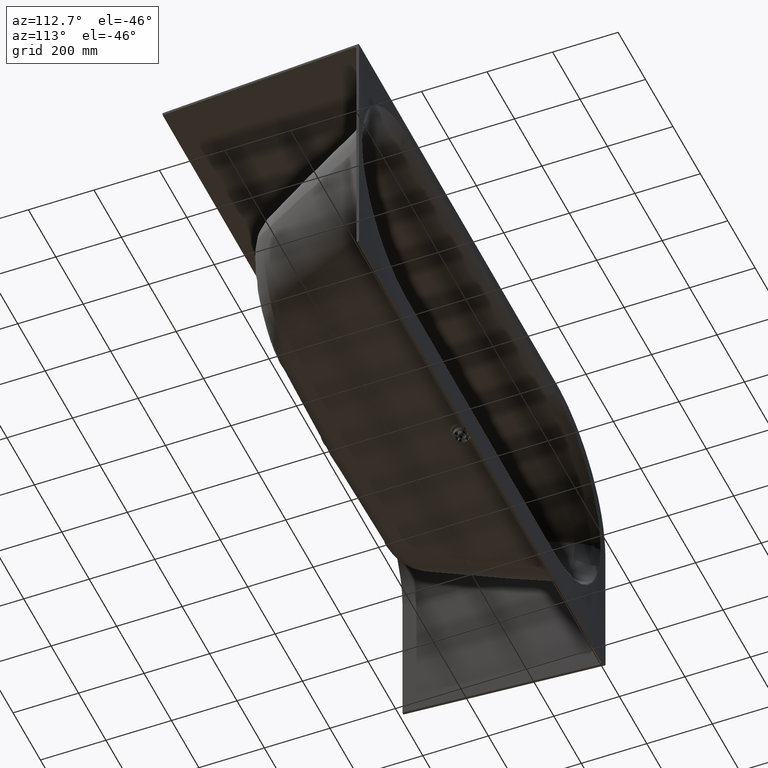
[diagram: clean part render]
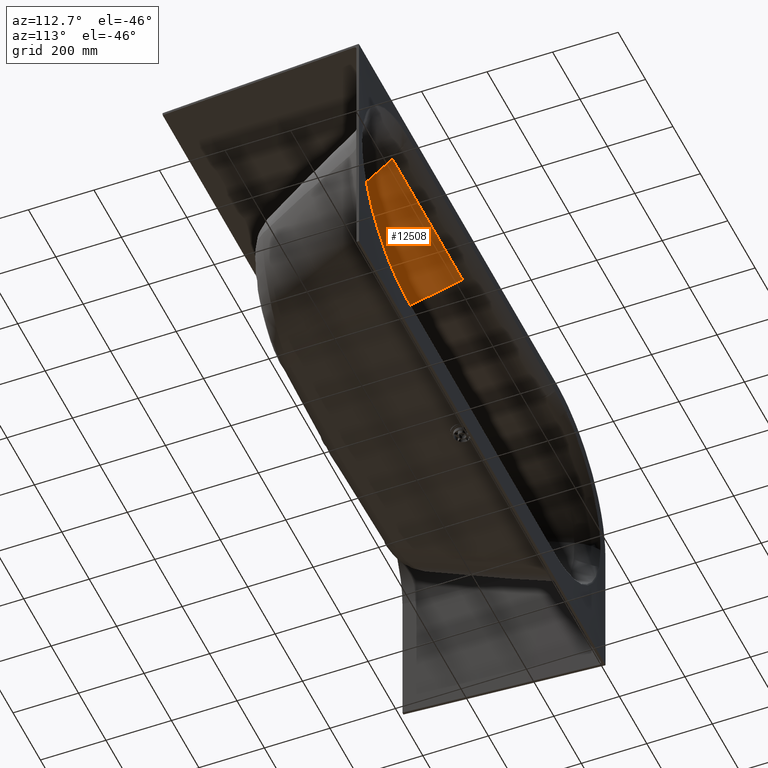
[diagram: same view with one face highlighted and labeled with its STEP entity id]
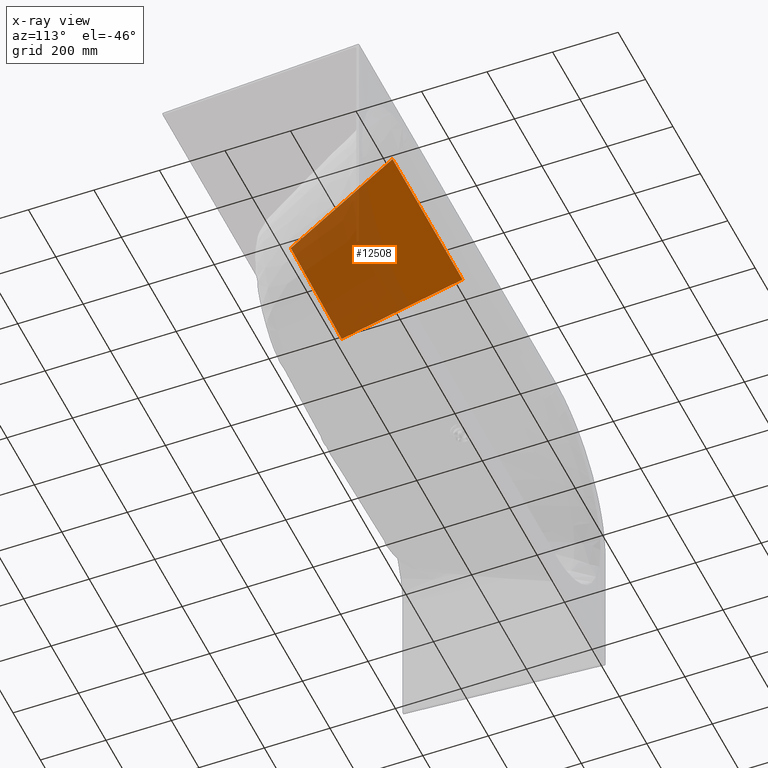
[diagram: x-ray of the same camera — body ghosted, the highlighted face saturated]
A machine part, auxiliary view. The second image highlights one B-rep face of the part: STEP entity #12508.
The next image is the same camera in x-ray: the body ghosted, the highlighted face saturated — about 59% of this face is hidden behind the body in this view.
In plain terms, the highlighted face is a freeform B-spline surface patch.
Its self-contained STEP definition (entity closure, byte-faithful):
#2372=CARTESIAN_POINT('',(5.110218891271E2,-6.054304443643E1,3.277809061408E2));
#2403=CARTESIAN_POINT('',(0.E0,-6.054399916378E1,3.277806644833E2));
#2404=CARTESIAN_POINT('',(1.703404609740E2,-6.054399916378E1,3.277806644833E2));
#2405=CARTESIAN_POINT('',(3.406814281532E2,-6.054305858824E1,3.277809620081E2));
#2406=CARTESIAN_POINT('',(5.110218891271E2,-6.054304443643E1,3.277809061408E2));
#3200=DIRECTION('',(-3.243835470144E-1,-9.170092459292E-1,-2.320977322309E-1));
#3201=VECTOR('',#3200,3.973449760404E2);
#3202=CARTESIAN_POINT('',(5.110218891271E2,-6.054304443643E1,3.277809061408E2));
#3203=LINE('',#3202,#3201);
#3204=CARTESIAN_POINT('',(3.821297164108E2,-4.249120612890E2,2.355580382884E2));
#3205=CARTESIAN_POINT('',(3.797755431722E2,-4.250129725860E2,2.355342622633E2));
#3206=CARTESIAN_POINT('',(3.747932515425E2,-4.251542848250E2,2.355020763330E2));
#3207=CARTESIAN_POINT('',(3.665620737458E2,-4.253501159943E2,2.354578492057E2));
#3208=CARTESIAN_POINT('',(3.574216345834E2,-4.255693710715E2,2.354075948610E2));
#3209=CARTESIAN_POINT('',(3.472509548175E2,-4.258034783601E2,2.353533796426E2));
#3210=CARTESIAN_POINT('',(3.358890797524E2,-4.260560686391E2,2.352941629421E2));
#3211=CARTESIAN_POINT('',(3.231226094317E2,-4.263280096301E2,2.352295730855E2));
#3212=CARTESIAN_POINT('',(3.087557457029E2,-4.266196603906E2,2.351593276086E2));
#3213=CARTESIAN_POINT('',(2.921252974144E2,-4.269384303107E2,2.350813586643E2));
#3214=CARTESIAN_POINT('',(2.739467547824E2,-4.272634036828E2,2.350005068432E2));
#3215=CARTESIAN_POINT('',(2.561446849795E2,-4.275586542646E2,2.349258284139E2));
#3216=CARTESIAN_POINT('',(2.388392233489E2,-4.278248718313E2,2.348574844720E2));
#3217=CARTESIAN_POINT('',(2.218095469704E2,-4.280670069547E2,2.347944422761E2));
#3218=CARTESIAN_POINT('',(2.050931214405E2,-4.282857658627E2,2.347367207454E2));
#3219=CARTESIAN_POINT('',(1.886209974639E2,-4.284832042470E2,2.346839572111E2));
#3220=CARTESIAN_POINT('',(1.723659140701E2,-4.286605386843E2,2.346359797811E2));
#3221=CARTESIAN_POINT('',(1.562900667196E2,-4.288189513241E2,2.345926050984E2));
#3222=CARTESIAN_POINT('',(1.403624194096E2,-4.289593775098E2,2.345536985972E2));
#3223=CARTESIAN_POINT('',(1.245534762805E2,-4.290826122227E2,2.345191509136E2));
#3224=CARTESIAN_POINT('',(1.088374426634E2,-4.291893173896E2,2.344888795385E2));
#3225=CARTESIAN_POINT('',(9.319134669932E1,-4.292800652411E2,2.344628203519E2));
#3226=CARTESIAN_POINT('',(7.759755927810E1,-4.293553554450E2,2.344409257815E2));
#3227=CARTESIAN_POINT('',(6.203805103967E1,-4.294156919129E2,2.344231462647E2));
#3228=CARTESIAN_POINT('',(4.651046679555E1,-4.294615006717E2,2.344094541462E2));
#3229=CARTESIAN_POINT('',(3.098701217859E1,-4.294934976207E2,2.343997473482E2));
#3230=CARTESIAN_POINT('',(1.550861606283E1,-4.295117682763E2,2.343940905631E2));
#3231=CARTESIAN_POINT('',(5.170124141787E0,-4.295162588066E2,2.343927036163E2));
#3232=CARTESIAN_POINT('',(-2.158024530808E-8,-4.295160011122E2,
2.343927688753E2));
#3234=DIRECTION('',(5.669955917872E-11,9.694305862194E-1,2.453657239762E-1));
#3235=VECTOR('',#3234,3.806069327639E2);
#3236=CARTESIAN_POINT('',(-2.158024530808E-8,-4.295160011122E2,
2.343927688753E2));
#3237=LINE('',#3236,#3235);
#3750=VERTEX_POINT('',#2372);
#3786=CARTESIAN_POINT('',(-2.158024530808E-8,-4.295160011122E2,
2.343927688753E2));
#3787=CARTESIAN_POINT('',(0.E0,-6.054399916378E1,3.277806644833E2));
#3788=VERTEX_POINT('',#3786);
#3789=VERTEX_POINT('',#3787);
#3799=VERTEX_POINT('',#3204);
#12472=CARTESIAN_POINT('',(5.174397074406E2,-5.688291511897E1,
3.287221880076E2));
#12473=CARTESIAN_POINT('',(5.051586320806E2,-9.122172292698E1,
3.198826146986E2));
#12474=CARTESIAN_POINT('',(4.809687714841E2,-1.589733875537E2,
3.029259223842E2));
#12475=CARTESIAN_POINT('',(4.448693292253E2,-2.599978445884E2,
2.772890509623E2));
#12476=CARTESIAN_POINT('',(4.091415577030E2,-3.599952050103E2,
2.519683957748E2));
#12477=CARTESIAN_POINT('',(3.853231286905E2,-4.266666845135E2,
2.351140146626E2));
#12478=CARTESIAN_POINT('',(3.734138874353E2,-4.600000000006E2,
2.266771793714E2));
#12479=CARTESIAN_POINT('',(3.432522060100E2,-5.676005594796E1,
3.282367837167E2));
#12480=CARTESIAN_POINT('',(3.351052888920E2,-9.232227710692E1,
3.242316225409E2));
#12481=CARTESIAN_POINT('',(3.190585633965E2,-1.584948175450E2,
3.010346307167E2));
#12482=CARTESIAN_POINT('',(2.951109904390E2,-2.600741069331E2,
2.775909186273E2));
#12483=CARTESIAN_POINT('',(2.714120333332E2,-3.601630137493E2,
2.526296386345E2));
#12484=CARTESIAN_POINT('',(2.556103889898E2,-4.266660624764E2,
2.351115570189E2));
#12485=CARTESIAN_POINT('',(2.477101993483E2,-4.599999999897E2,
2.266771793258E2));
#12486=CARTESIAN_POINT('',(1.690643262736E2,-5.688280391242E1,
3.287172254574E2));
#12487=CARTESIAN_POINT('',(1.650517598259E2,-9.123244438887E1,
3.199246150636E2));
#12488=CARTESIAN_POINT('',(1.571482303697E2,-1.589687231615E2,
3.029076539405E2));
#12489=CARTESIAN_POINT('',(1.453533356301E2,-2.599985950542E2,
2.772919776572E2));
#12490=CARTESIAN_POINT('',(1.336798896653E2,-3.599968117944E2,
2.519747392390E2));
#12491=CARTESIAN_POINT('',(1.258976492892E2,-4.266666785386E2,
2.351139910568E2));
#12492=CARTESIAN_POINT('',(1.220065112619E2,-4.600000000002E2,
2.266771793709E2));
#12493=CARTESIAN_POINT('',(-5.123175117135E0,-5.688040215585E1,
3.287077850209E2));
#12494=CARTESIAN_POINT('',(-5.001581815268E0,-9.125376631802E1,
3.200092458910E2));
#12495=CARTESIAN_POINT('',(-4.762080237923E0,-1.589594537196E2,
3.028708532535E2));
#12496=CARTESIAN_POINT('',(-4.404658129944E0,-2.600000648142E2,
2.772978401815E2));
#12497=CARTESIAN_POINT('',(-4.050916896969E0,-3.600000916384E2,
2.519876506194E2));
#12498=CARTESIAN_POINT('',(-3.815090411454E0,-4.266666664003E2,
2.351139430988E2));
#12499=CARTESIAN_POINT('',(-3.697176824812E0,-4.6E2,2.266771793700E2));
#12500=B_SPLINE_SURFACE_WITH_KNOTS('',3,3,((#12472,#12473,#12474,#12475,#12476,
#12477,#12478),(#12479,#12480,#12481,#12482,#12483,#12484,#12485),(#12486,
#12487,#12488,#12489,#12490,#12491,#12492),(#12493,#12494,#12495,#12496,#12497,
#12498,#12499)),.UNSPECIFIED.,.F.,.F.,.F.,(4,4),(4,1,1,1,4),(-9.997371316652E-3,
1.01E0),(-9.171489610179E-3,2.48980407E-1,4.99320272E-1,7.49660136E-1,1.E0),
.UNSPECIFIED.);
#12502=ORIENTED_EDGE('',*,*,#12501,.F.);
#12503=ORIENTED_EDGE('',*,*,#12014,.F.);
#12504=ORIENTED_EDGE('',*,*,#12467,.F.);
#12505=ORIENTED_EDGE('',*,*,#10700,.F.);
#12506=EDGE_LOOP('',(#12502,#12503,#12504,#12505));
#12507=FACE_OUTER_BOUND('',#12506,.F.);
#12508=ADVANCED_FACE('',(#12507),#12500,.F.);
#2407=B_SPLINE_CURVE_WITH_KNOTS('',3,(#2403,#2404,#2405,#2406),.UNSPECIFIED.,
.F.,.F.,(4,4),(0.E0,1.E0),.UNSPECIFIED.);
#3233=B_SPLINE_CURVE_WITH_KNOTS('',3,(#3204,#3205,#3206,#3207,#3208,#3209,#3210,
#3211,#3212,#3213,#3214,#3215,#3216,#3217,#3218,#3219,#3220,#3221,#3222,#3223,
#3224,#3225,#3226,#3227,#3228,#3229,#3230,#3231,#3232),.UNSPECIFIED.,.F.,.F.,(4,
1,1,1,1,1,1,1,1,1,1,1,1,1,1,1,1,1,1,1,1,1,1,1,1,1,4),(0.E0,3.846153846154E-2,
7.692307692308E-2,1.153846153846E-1,1.538461538462E-1,1.923076923077E-1,
2.307692307692E-1,2.692307692308E-1,3.076923076923E-1,3.461538461538E-1,
3.846153846154E-1,4.230769230769E-1,4.615384615385E-1,5.E-1,5.384615384615E-1,
5.769230769231E-1,6.153846153846E-1,6.538461538462E-1,6.923076923077E-1,
7.307692307692E-1,7.692307692308E-1,8.076923076923E-1,8.461538461538E-1,
8.846153846154E-1,9.230769230769E-1,9.615384615385E-1,1.E0),.UNSPECIFIED.);
#10700=EDGE_CURVE('',#3789,#3750,#2407,.T.);
#12014=EDGE_CURVE('',#3799,#3788,#3233,.T.);
#12467=EDGE_CURVE('',#3750,#3799,#3203,.T.);
#12501=EDGE_CURVE('',#3788,#3789,#3237,.T.);